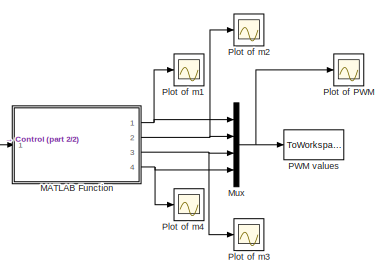
[diagram: root canvas - part 1/2, top right region]
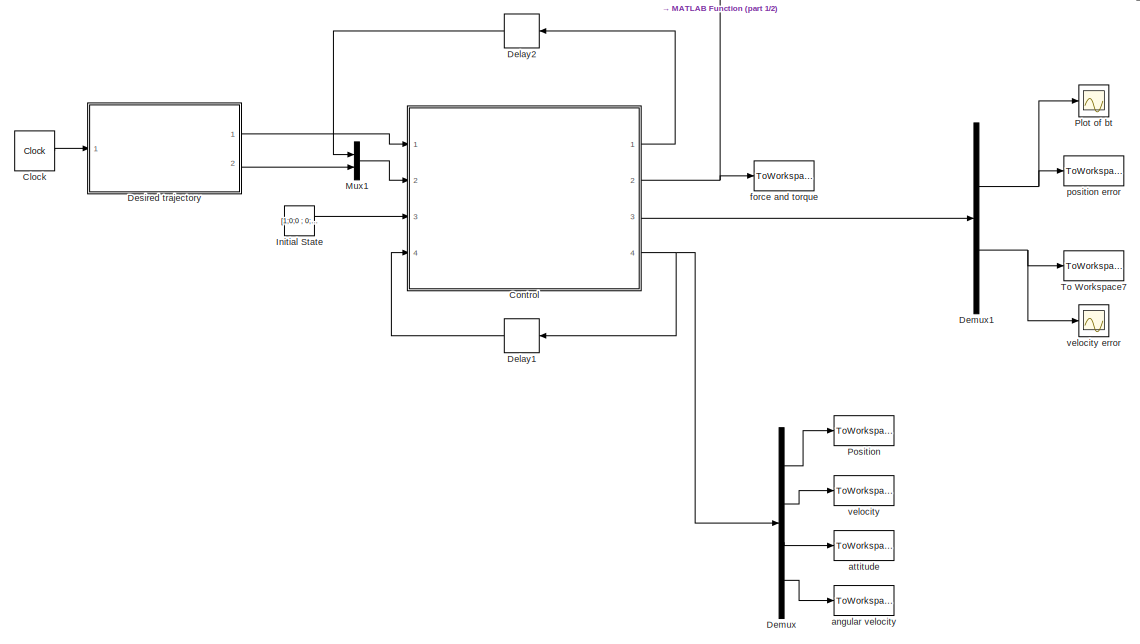
[diagram: root canvas - part 2/2, most of the canvas]
MODEL slx_c759b793b8d3
KIND model
CONFIG AbsTol = auto
CONFIG EnableMultiTasking = on
CONFIG FixedStep = 0.01
CONFIG MaxStep = auto
CONFIG MinStep = auto
CONFIG RelTol = 1e-3
CONFIG SampleTimeConstraint = Unconstrained
CONFIG Solver = FixedStepDiscrete
CONFIG SolverName = FixedStepDiscrete
CONFIG StartTime = 0.0
CONFIG StopTime = 5
BLOCK [Clock] Clock
  DisplayTime = on
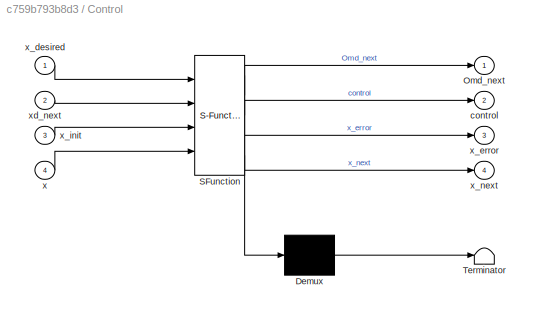
BLOCK [SubSystem] Control
  ErrorFcn = Stateflow.Translate.translate
  PermitHierarchicalResolution = ExplicitOnly
  Ports = [4, 4]
  RequestExecContextInheritance = off
  SFBlockType = MATLAB Function
  TreatAsAtomicUnit = on
BLOCK [Demux] Control/ Demux 
  Outputs = 1
  Ports = [1, 1]
BLOCK [S-Function] Control/ SFunction 
  EnableBusSupport = on
  FunctionName = sf_sfun
  PortCounts = [4 5]
  Ports = [4, 5]
  SFcnIsStateOwnerBlock = off
  SFunctionDeploymentMode = off
  Tag = Stateflow S-Function FTS_Spiral_June18 2
BLOCK [Terminator] Control/ Terminator 
BLOCK [Outport] Control/Omd_next
  IconDisplay = Port number
BLOCK [Outport] Control/control
  IconDisplay = Port number
  Port = 2
BLOCK [Inport] Control/x
  IconDisplay = Port number
  Port = 4
BLOCK [Inport] Control/x_desired
  IconDisplay = Port number
BLOCK [Outport] Control/x_error
  IconDisplay = Port number
  Port = 3
BLOCK [Inport] Control/x_init
  IconDisplay = Port number
  Port = 3
BLOCK [Outport] Control/x_next
  IconDisplay = Port number
  Port = 4
BLOCK [Inport] Control/xd_next
  IconDisplay = Port number
  Port = 2
BLOCK [Delay] Delay1
  DelayLength = 1
  InitialCondition = 0
  InputPortMap = u0
  Ports = [1, 1]
BLOCK [Delay] Delay2
  DelayLength = 1
  InitialCondition = 0
  InputPortMap = u0
  Ports = [1, 1]
BLOCK [Demux] Demux
  DisplayOption = bar
  Outputs = [3 3 9 3]
  Ports = [1, 4]
BLOCK [Demux] Demux1
  DisplayOption = bar
  Outputs = [3 3]
  Ports = [1, 2]
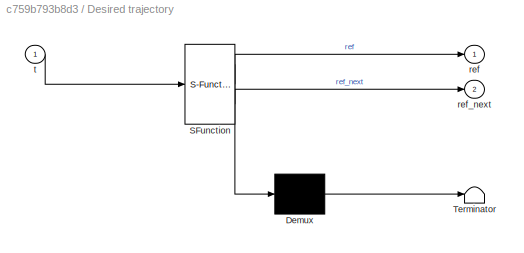
BLOCK [SubSystem] Desired trajectory
  ErrorFcn = Stateflow.Translate.translate
  PermitHierarchicalResolution = ExplicitOnly
  Ports = [1, 2]
  RequestExecContextInheritance = off
  SFBlockType = MATLAB Function
  TreatAsAtomicUnit = on
BLOCK [Demux] Desired trajectory/ Demux 
  Outputs = 1
  Ports = [1, 1]
BLOCK [S-Function] Desired trajectory/ SFunction 
  EnableBusSupport = on
  FunctionName = sf_sfun
  PortCounts = [1 3]
  Ports = [1, 3]
  SFcnIsStateOwnerBlock = off
  SFunctionDeploymentMode = off
  Tag = Stateflow S-Function FTS_Spiral_June18 1
BLOCK [Terminator] Desired trajectory/ Terminator 
BLOCK [Outport] Desired trajectory/ref
  IconDisplay = Port number
BLOCK [Outport] Desired trajectory/ref_next
  IconDisplay = Port number
  Port = 2
BLOCK [Inport] Desired trajectory/t 
  IconDisplay = Port number
BLOCK [Constant] Initial State
  Value = [1;0;0 ; 0;0;0 ; 1;0;0;0;1;0;0;0;1; 0;0;0]
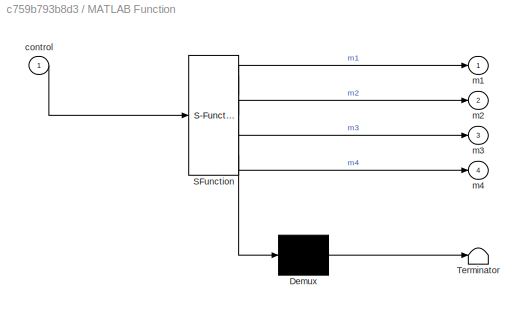
BLOCK [SubSystem] MATLAB Function
  ErrorFcn = Stateflow.Translate.translate
  PermitHierarchicalResolution = ExplicitOnly
  Ports = [1, 4]
  RequestExecContextInheritance = off
  SFBlockType = MATLAB Function
  TreatAsAtomicUnit = on
BLOCK [Demux] MATLAB Function/ Demux 
  Outputs = 1
  Ports = [1, 1]
BLOCK [S-Function] MATLAB Function/ SFunction 
  EnableBusSupport = on
  FunctionName = sf_sfun
  PortCounts = [1 5]
  Ports = [1, 5]
  SFcnIsStateOwnerBlock = off
  SFunctionDeploymentMode = off
  Tag = Stateflow S-Function FTS_Spiral_June18 3
BLOCK [Terminator] MATLAB Function/ Terminator 
BLOCK [Inport] MATLAB Function/control
  IconDisplay = Port number
BLOCK [Outport] MATLAB Function/m1
  IconDisplay = Port number
BLOCK [Outport] MATLAB Function/m2
  IconDisplay = Port number
  Port = 2
BLOCK [Outport] MATLAB Function/m3
  IconDisplay = Port number
  Port = 3
BLOCK [Outport] MATLAB Function/m4
  IconDisplay = Port number
  Port = 4
BLOCK [Mux] Mux
  DisplayOption = bar
  Ports = [4, 1]
BLOCK [Mux] Mux1
  DisplayOption = bar
  Inputs = 2
  Ports = [2, 1]
BLOCK [ToWorkspace] PWM values
  FixptAsFi = on
  MaxDataPoints = inf
  Ports = [1]
  SampleTime = -1
  Save2DSignal = 3-D array (concatenate along third dimension)
  SaveFormat = Timeseries
  VariableName = PWM
BLOCK [Scope] Plot of PWM
  Floating = off
  NumInputPorts = 1
  Ports = [1]
  ScopeSpecificationString = Simulink.scopes.TimeScopeBlockCfg('CurrentConfiguration', extmgr.ConfigurationSet(extmgr.Configuration('Core','General UI',true),extmgr.Configuration('Core','Source UI',true),extmgr.Configuration('Sources','WiredSimulink',true,'DataLoggingVariableName','ScopeData1'),extmgr.Configuration('Visuals','Time Domain',true,'SerializedDisplays',{struct('MinYLimReal','-20961.45104','MaxYLimReal','7841.84887...<+1497ch>
BLOCK [Scope] Plot of bt
  Floating = off
  NumInputPorts = 1
  Ports = [1]
  ScopeSpecificationString = Simulink.scopes.TimeScopeBlockCfg('CurrentConfiguration', extmgr.ConfigurationSet(extmgr.Configuration('Core','General UI',true),extmgr.Configuration('Core','Source UI',true),extmgr.Configuration('Sources','WiredSimulink',true,'DataLoggingVariableName','ScopeData2'),extmgr.Configuration('Visuals','Time Domain',true,'SerializedDisplays',{struct('MinYLimReal','-0.8','MaxYLimReal','1.2','YLabelReal',...<+1400ch>
BLOCK [Scope] Plot of m1
  Floating = off
  NumInputPorts = 1
  Ports = [1]
  ScopeSpecificationString = Simulink.scopes.TimeScopeBlockCfg('CurrentConfiguration', extmgr.ConfigurationSet(extmgr.Configuration('Core','General UI',true),extmgr.Configuration('Core','Source UI',true),extmgr.Configuration('Sources','WiredSimulink',true,'DataLoggingVariableName','ScopeData2'),extmgr.Configuration('Visuals','Time Domain',true,'SerializedDisplays',{struct('MinYLimReal','-20961.45104','MaxYLimReal','7841.84887...<+1497ch>
BLOCK [Scope] Plot of m2
  Floating = off
  NumInputPorts = 1
  Ports = [1]
  ScopeSpecificationString = Simulink.scopes.TimeScopeBlockCfg('CurrentConfiguration', extmgr.ConfigurationSet(extmgr.Configuration('Core','General UI',true),extmgr.Configuration('Core','Source UI',true),extmgr.Configuration('Sources','WiredSimulink',true,'DataLoggingVariableName','ScopeData5'),extmgr.Configuration('Visuals','Time Domain',true,'SerializedDisplays',{struct('MinYLimReal','-7829.93803','MaxYLimReal','6382.79187'...<+1427ch>
BLOCK [Scope] Plot of m3
  Floating = off
  NumInputPorts = 1
  Ports = [1]
  ScopeSpecificationString = Simulink.scopes.TimeScopeBlockCfg('CurrentConfiguration', extmgr.ConfigurationSet(extmgr.Configuration('Core','General UI',true),extmgr.Configuration('Core','Source UI',true),extmgr.Configuration('Sources','WiredSimulink',true,'DataLoggingVariableName','ScopeData4'),extmgr.Configuration('Visuals','Time Domain',true,'SerializedDisplays',{struct('MinYLimReal','-3967.15711','MaxYLimReal','2517.20691'...<+1427ch>
BLOCK [Scope] Plot of m4
  Floating = off
  NumInputPorts = 1
  Ports = [1]
  ScopeSpecificationString = Simulink.scopes.TimeScopeBlockCfg('CurrentConfiguration', extmgr.ConfigurationSet(extmgr.Configuration('Core','General UI',true),extmgr.Configuration('Core','Source UI',true),extmgr.Configuration('Sources','WiredSimulink',true,'DataLoggingVariableName','ScopeData3'),extmgr.Configuration('Visuals','Time Domain',true,'SerializedDisplays',{struct('MinYLimReal','-20132.89294','MaxYLimReal','571.65436'...<+1431ch>
BLOCK [ToWorkspace] Position
  FixptAsFi = on
  MaxDataPoints = inf
  Ports = [1]
  SampleTime = -1
  Save2DSignal = 3-D array (concatenate along third dimension)
  SaveFormat = Structure
  VariableName = b
BLOCK [ToWorkspace] To Workspace7
  FixptAsFi = on
  MaxDataPoints = inf
  Ports = [1]
  SampleTime = -1
  Save2DSignal = 3-D array (concatenate along third dimension)
  SaveFormat = Structure
  VariableName = vt
BLOCK [ToWorkspace] angular velocity
  FixptAsFi = on
  MaxDataPoints = inf
  Ports = [1]
  SampleTime = -1
  Save2DSignal = 3-D array (concatenate along third dimension)
  SaveFormat = Structure
  VariableName = Om
BLOCK [ToWorkspace] attitude
  FixptAsFi = on
  MaxDataPoints = inf
  Ports = [1]
  SampleTime = -1
  Save2DSignal = 3-D array (concatenate along third dimension)
  SaveFormat = Structure
  VariableName = R
BLOCK [ToWorkspace] force and torque
  FixptAsFi = on
  MaxDataPoints = inf
  Ports = [1]
  SampleTime = -1
  Save2DSignal = 3-D array (concatenate along third dimension)
  SaveFormat = Structure
  VariableName = control
BLOCK [ToWorkspace] position error
  FixptAsFi = on
  MaxDataPoints = inf
  Ports = [1]
  SampleTime = -1
  Save2DSignal = 3-D array (concatenate along third dimension)
  SaveFormat = Structure
  VariableName = bt
BLOCK [ToWorkspace] velocity
  FixptAsFi = on
  MaxDataPoints = inf
  Ports = [1]
  SampleTime = -1
  Save2DSignal = 3-D array (concatenate along third dimension)
  SaveFormat = Structure
  VariableName = v
BLOCK [Scope] velocity error
  Floating = off
  NumInputPorts = 1
  Ports = [1]
  ScopeSpecificationString = Simulink.scopes.TimeScopeBlockCfg('CurrentConfiguration', extmgr.ConfigurationSet(extmgr.Configuration('Core','General UI',true),extmgr.Configuration('Core','Source UI',true),extmgr.Configuration('Sources','WiredSimulink',true,'DataLoggingVariableName','ScopeData1'),extmgr.Configuration('Visuals','Time Domain',true,'SerializedDisplays',{struct('MinYLimReal','-1.50185','MaxYLimReal','0.95029','YLab...<+1395ch>
LINE Clock:1 -> Desired trajectory:1
LINE Control:1 -> Delay2:1
NET Control:2 -> MATLAB Function:1, force and torque:1
LINE Control:3 -> Demux1:1
NET Control:4 -> Delay1:1, Demux:1
LINE Delay1:1 -> Control:4
LINE Delay2:1 -> Mux1:1
NET Demux1:1 -> Plot of bt:1, position error:1
NET Demux1:2 -> To Workspace7:1, velocity error:1
LINE Demux:1 -> Position:1
LINE Demux:2 -> velocity:1
LINE Demux:3 -> attitude:1
LINE Demux:4 -> angular velocity:1
LINE Desired trajectory:1 -> Control:1
LINE Desired trajectory:2 -> Mux1:2
LINE Initial State:1 -> Control:3
NET MATLAB Function:1 -> Mux:1, Plot of m1:1
NET MATLAB Function:2 -> Mux:2, Plot of m2:1
NET MATLAB Function:3 -> Mux:3, Plot of m3:1
NET MATLAB Function:4 -> Mux:4, Plot of m4:1
LINE Mux1:1 -> Control:2
NET Mux:1 -> PWM values:1, Plot of PWM:1
note: NET lines group one-source signal fan-out (src -> all destinations, sorted); 1:1 wires keep LINE
CHART Desired trajectory states=1 transitions=1
  STATE_LABEL 'eML_blk_kernel()'
  STATE_LABEL 'SCRIPT:\n% desired traj\n\nfunction [ref,ref_next] = desired_traj(t)\n\nh=0.01;\n\n% t(k+1) = t+h;\n\nbd = [0.4*sin(pi*t);0.6*cos(pi*t);0.4*t];\nvd = [0.4*pi*cos(pi*t);-0.6*pi*sin(pi*t);0.4];\ndvd = [-0.4*pi^2*sin(pi*t);-0.6*pi^2*cos(pi*t);0];\n\nref = [bd;vd;dvd;t];\n\n\nbd_next = [0.4*sin(pi*(t+h));0.6*cos(pi*(t+h));0.4*(t+h)];\nvd_next = [0.4*pi*cos(pi*(t+h));-0.6*pi*sin(pi*(t+h));0.4];\ndvd_next = [-0.4*pi^2*si...<+84ch>'
CHART Control states=1 transitions=1
  STATE_LABEL 'eML_blk_kernel()'
  STATE_LABEL 'SCRIPT:\nfunction [Omd_next,control,x_error,x_next]  = newFTS(x_desired,xd_next,x_init,x)\n\nJ=diag([0.0820,0.0845,0.1377]);         % kgm^2\nm=4.34;                                 % kg\nM=m*eye(3);\ng=9.81;\nh = 0.01;\ne3=[0;0;1];\n\n\n% x_next = zeros(18,1);\n\nt = x_desired(10);\n\nif t==0\nb = x_init(1:3,:);\nnu = x_init(4:6,:);\nR = reshape(x_init(7:15,:),3,3);\nOm = x_init(16:18,:);\nOmd = Om;\n% \n% bd = x_desi...<+2762ch>'
CHART MATLAB Function states=1 transitions=1
  STATE_LABEL 'eML_blk_kernel()'
  STATE_LABEL 'SCRIPT:\n% mapping\nfunction [m1, m2, m3, m4] = PWMmap(control)\n\nf = control(1,:);\ntau = control (2:4,:);\n\n \n p1 =  0.00751;  %0.009334;\n% sum of the constant terms \n p2 =    -8.45436; % -9.711;\n \n% diagonal distance in meters      \n D = sqrt(2)*0.14891;\n  \n% torque constant            \n p3 =  0.00011;  %0.0001189;\n%p4 =     -0.112; \n\n\nK = [ 0 -p1*D 0 p1*D; p1*D 0 -p1*D 0; -p3 p3 -p3 p3; -p1 -p1 -p1...<+292ch>'
